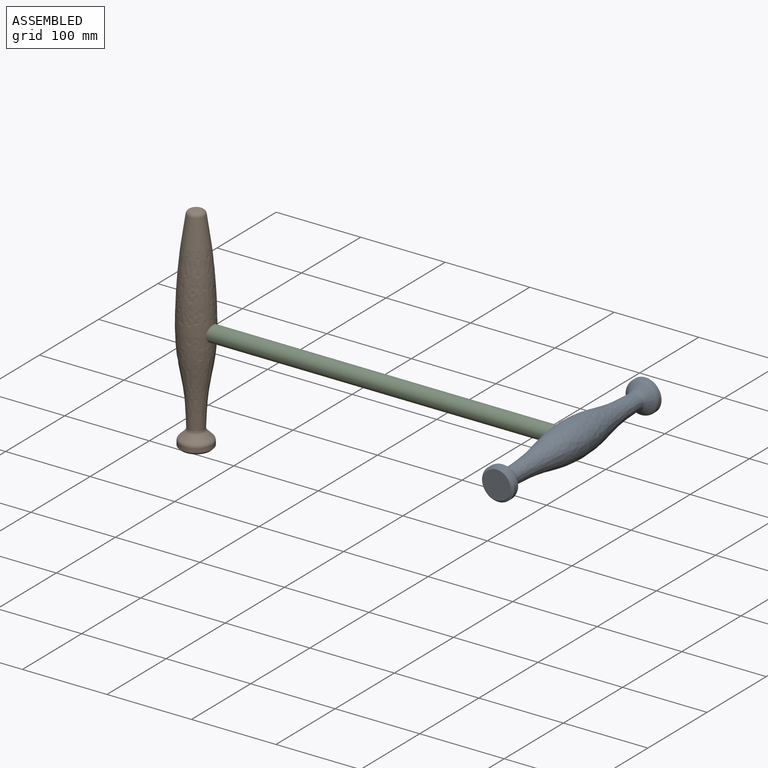
[diagram: assembled view]
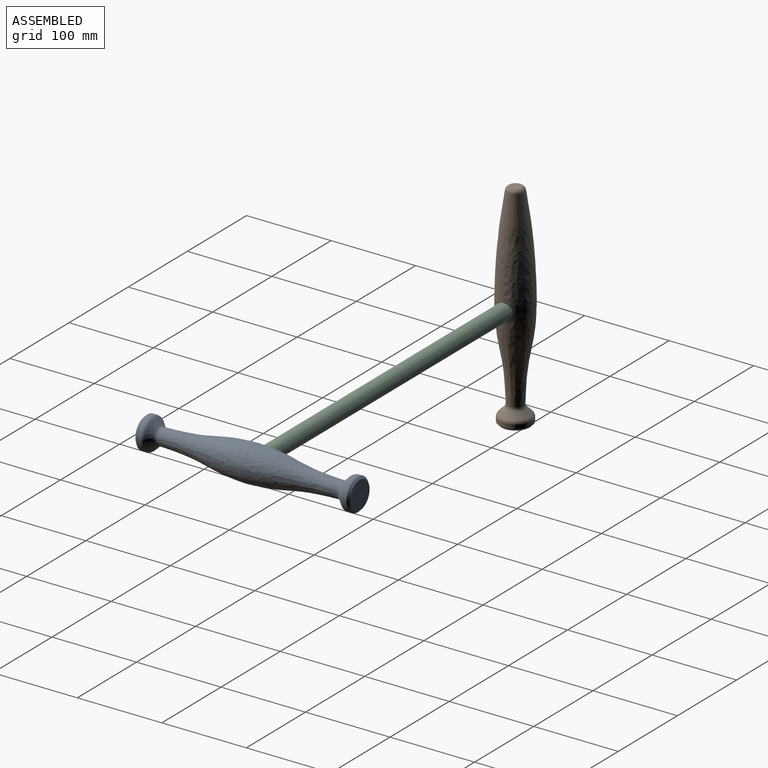
[diagram: assembled view, second angle]
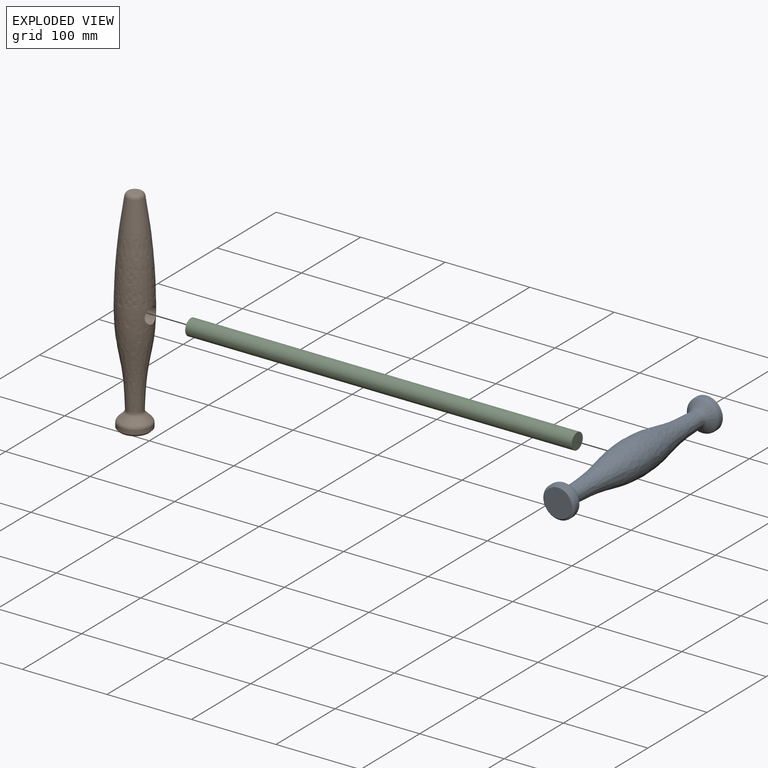
[diagram: exploded view]
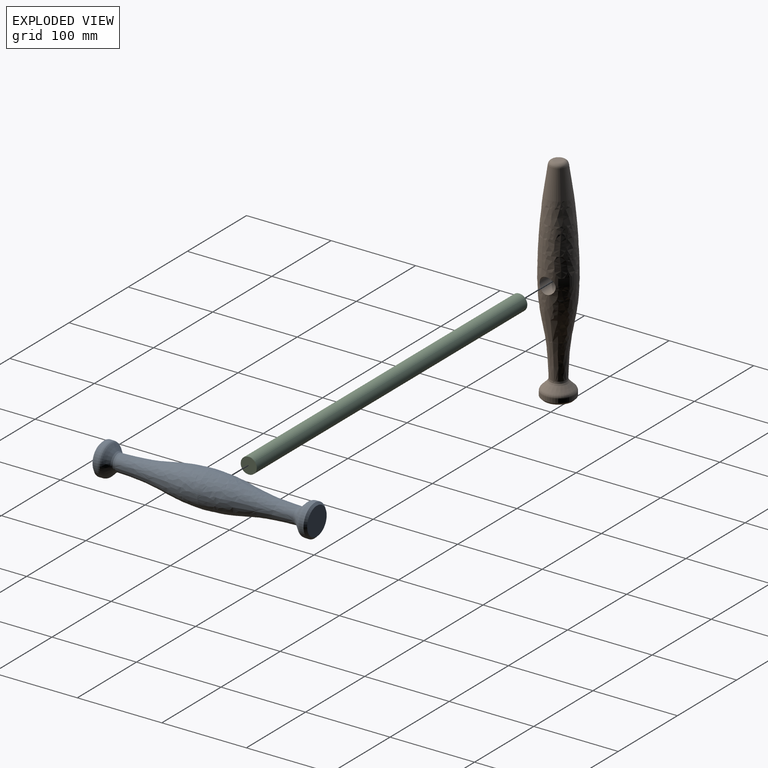
[diagram: exploded view, second angle]
ASSEMBLY  parts=3 mates=2
PART A: 16 faces, bbox 41.3x41.3x254 mm
  f0: bspline ~105.74x41.25mm, area 9797.2mm2, adj f1,f6,f14
  f1: bspline ~105.74x41.25mm, area 9797.3mm2, adj f0,f12,f14
  f2: cylinder r=19.05mm len=38.1mm, axis (0,0,-1), area 584.2mm2, adj f5,f7
  f3: plane 33.02x33.02mm, normal (0,0,-1), area 856.3mm2, adj f5
  f4: cone r=19.05mm half-angle=45deg, axis (0,0,-1), area 824.1mm2, adj f6,f7
  f5: cone r=19.05mm half-angle=45deg, axis (0,0,1), area 401.3mm2, adj f2,f3
  f6: bspline ~22.19x22.18mm, area 264.3mm2, adj f0,f4
  f7: torus R=13.97mm, axis (0,0,-1), area 464.9mm2, adj f2,f4
  f8: cylinder r=19.05mm len=38.1mm, axis (0,0,1), area 584.2mm2, adj f11,f13
  f9: plane 33.02x33.02mm, normal (0,0,1), area 856.3mm2, adj f11
  f10: cone r=19.05mm half-angle=45deg, axis (0,0,1), area 824.1mm2, adj f12,f13
  f11: cone r=19.05mm half-angle=45deg, axis (0,0,-1), area 401.3mm2, adj f8,f9
  f12: bspline ~22.18x22.18mm, area 264.3mm2, adj f1,f10
  f13: torus R=13.97mm, axis (0,0,1), area 464.9mm2, adj f8,f10
  f14: cylinder r=9.53mm len=26.61mm, axis (-1,0,0), area 1532mm2, adj f0,f1,f15
  f15: plane 19.05x19.05mm, normal (-1,0,0), area 285mm2, adj f14
PART B: 12 faces, bbox 41.3x41.3x254 mm
  f0: bspline ~105.74x41.25mm, area 9797.2mm2, adj f1,f6,f10
  f1: revolved ~122.77x41.28mm, area 13164.7mm2, adj f0,f9,f10
  f2: cylinder r=19.05mm len=38.1mm, axis (0,0,-1), area 584.2mm2, adj f5,f7
  f3: plane 33.02x33.02mm, normal (0,0,-1), area 856.3mm2, adj f5
  f4: cone r=19.05mm half-angle=45deg, axis (0,0,-1), area 824.1mm2, adj f6,f7
  f5: cone r=19.05mm half-angle=45deg, axis (0,0,1), area 401.3mm2, adj f2,f3
  f6: bspline ~22.19x22.18mm, area 264.3mm2, adj f0,f4
  f7: torus R=13.97mm, axis (0,0,-1), area 464.9mm2, adj f2,f4
  f8: plane 10.5x10.5mm, normal (0,0,1), area 86.6mm2, adj f9
  f9: torus R=5.25mm, axis (0,0,-1), area 369.9mm2, adj f1,f8
  f10: cylinder r=9.53mm len=26.93mm, axis (-1,0,0), area 1538.3mm2, adj f0,f1,f11
  f11: plane 19.05x19.05mm, normal (1,0,0), area 285mm2, adj f10
PART C: 3 faces, bbox 457.2x19.1x19.1 mm
  f0: cylinder r=9.53mm len=457.2mm, axis (-1,0,0), area 27362.2mm2, adj f1,f2
  f1: plane 19.05x19.05mm, normal (1,0,0), area 285mm2, adj f0
  f2: plane 19.05x19.05mm, normal (-1,0,0), area 285mm2, adj f0
PLACE A rot(axis=(-1,0,0),90deg) t=(174.28,-128.86,114.9)mm
PLACE B t=(-143.22,-1.86,-12.1)mm
PLACE C t=(-149.57,-1.86,114.9)mm
MATE fastened A.f14 <-> C.f0  axis (-1,0,0) through (307.63,-1.86,114.9)mm
MATE fastened B.f10 <-> C.f0  axis (1,0,0) through (-149.57,-1.86,114.9)mm
